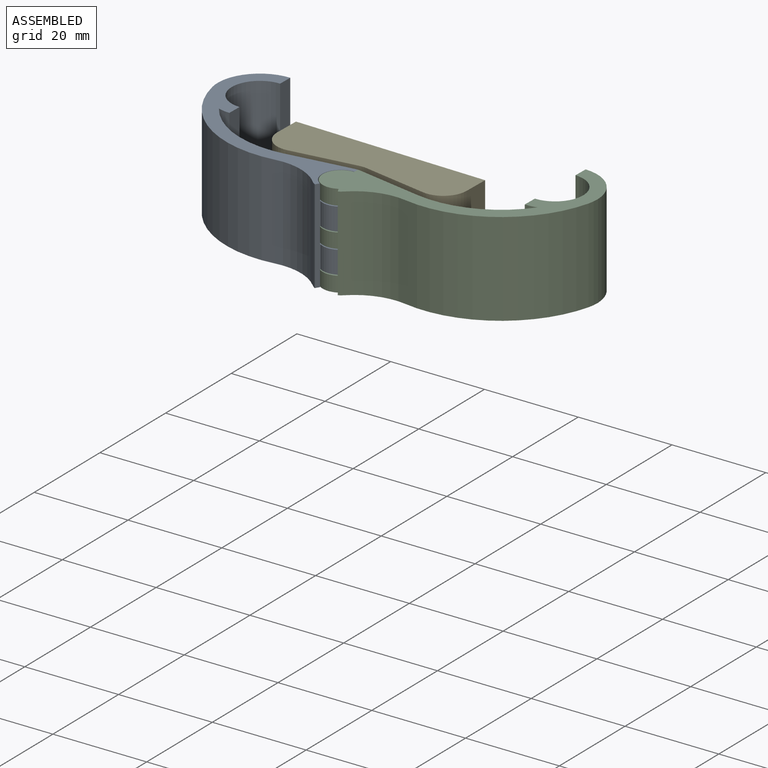
[diagram: assembled view]
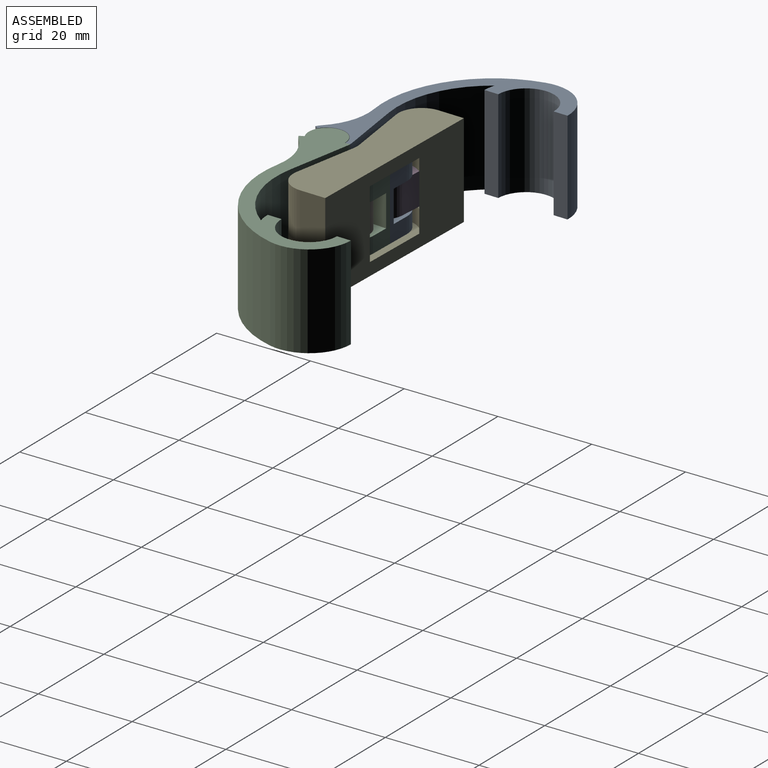
[diagram: assembled view, second angle]
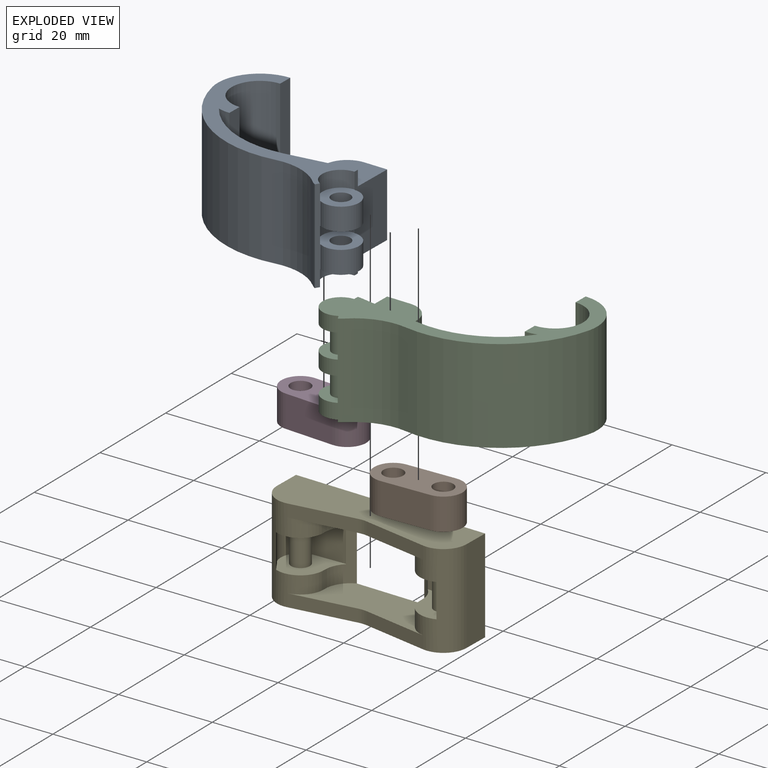
[diagram: exploded view]
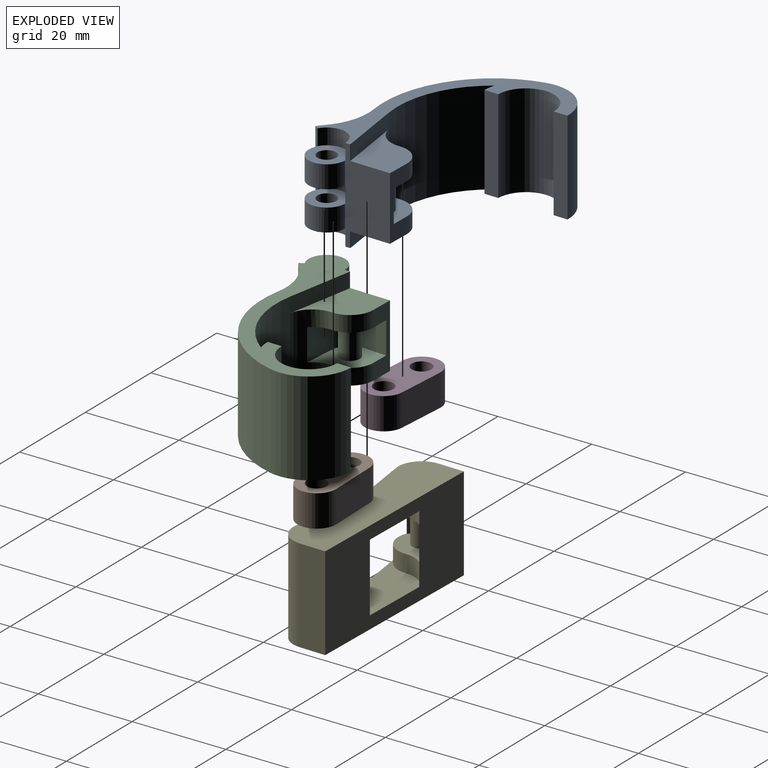
[diagram: exploded view, second angle]
ASSEMBLY  parts=5 mates=5
PART A: 40 faces, bbox 44.9x33x20 mm
  f0: cylinder r=5mm len=5.24mm, axis (0,0,-1), area 27.5mm2, adj f20,f22,f23,f28
  f1: plane 20x9.76mm, normal (1,0,0), area 138.7mm2, adj f2,f3,f6,f7,f8,f9,f20,f23
  f2: cylinder r=3.9mm len=7.8mm, axis (0,0,1), area 68.6mm2, adj f1,f4,f30,f33
  f3: cylinder r=3.9mm len=7.8mm, axis (0,0,1), area 68.6mm2, adj f1,f4,f31,f35
  f4: plane 20x0.95mm, normal (0.87,-0.5,0), area 21mm2, adj f2,f3,f5,f7,f8,f30,f31,f32
  f5: cylinder r=5mm len=20mm, axis (0,0,-1), area 24.5mm2, adj f4,f7,f8,f16
  f6: cylinder r=5mm len=3.2mm, axis (0,0,-1), area 2.5mm2, adj f1,f7,f17,f23
  f7: plane 41x32.99mm, normal (0,0,1), area 207.7mm2, adj f1,f4,f5,f6,f11,f12,f13,f14
  f8: plane 41x32.99mm, normal (0,0,-1), area 207.7mm2, adj f1,f4,f5,f9,f10,f11,f12,f13
  f9: cylinder r=5mm len=3.2mm, axis (0,0,-1), area 2.5mm2, adj f1,f8,f10,f24
  f10: plane 13.83x3.2mm, normal (-0.16,0.99,0), area 44.8mm2, adj f8,f9,f18,f24
  f11: plane 20x3mm, normal (1,0,0), area 60mm2, adj f7,f8,f12,f19
  f12: cylinder r=6mm len=20mm, axis (0,0,-1), area 377mm2, adj f7,f8,f11,f13
  f13: plane 20x3mm, normal (1,0,0), area 60mm2, adj f7,f8,f12,f14
  f14: cylinder r=9mm len=20mm, axis (0,0,-1), area 324.5mm2, adj f7,f8,f13,f15
  f15: cylinder r=23.53mm len=26.61mm, axis (0,0,-1), area 704.5mm2, adj f7,f8,f14,f16
  f16: cylinder r=12.52mm len=20mm, axis (0,0,-1), area 232mm2, adj f5,f7,f8,f15
  f17: plane 13.83x3.2mm, normal (-0.16,0.99,0), area 44.8mm2, adj f6,f7,f18,f23
  f18: cylinder r=20.53mm len=20mm, axis (0,0,-1), area 454.2mm2, adj f7,f8,f10,f17,f19,f22
  f19: cylinder r=9mm len=20mm, axis (0,0,-1), area 51.3mm2, adj f7,f8,f11,f18
  f20: plane 13.6x5mm, normal (0,1,0), area 41.7mm2, adj f0,f1,f21,f23,f24,f28,f29,f39
  f21: cylinder r=5mm len=5.24mm, axis (0,0,-1), area 27.5mm2, adj f20,f22,f24,f29
  f22: cylinder r=5.5mm len=13.6mm, axis (0,0,-1), area 77.8mm2, adj f0,f18,f21,f23,f24,f25,f28,f29
  f23: plane 14.62x10.93mm, normal (0,0,1), area 93mm2, adj f0,f1,f6,f17,f20,f22
  f24: plane 14.62x10.93mm, normal (0,0,-1), area 93mm2, adj f1,f9,f10,f20,f21,f22
  f25: plane 6.83x6.8mm, normal (-0.05,1,0), area 46.5mm2, adj f22,f26,f28,f29
  f26: cylinder r=4.1mm len=6.8mm, axis (0,0,-1), area 43.8mm2, adj f25,f28,f29,f39
  f27: cylinder r=2.1mm len=6.8mm, axis (0,0,-1), area 89.7mm2, adj f28,f29
  f28: plane 10.73x9.42mm, normal (0,0,-1), area 61.9mm2, adj f0,f20,f22,f25,f26,f27,f39
  f29: plane 10.73x9.42mm, normal (0,0,1), area 61.9mm2, adj f20,f21,f22,f25,f26,f27,f39
  f30: plane 7.9x7.9mm, normal (0,0,-1), area 36.3mm2, adj f1,f2,f4,f32,f38
  f31: plane 7.9x7.9mm, normal (0,0,1), area 36.3mm2, adj f1,f3,f4,f32,f37
  f32: cylinder r=4mm len=7.46mm, axis (0,0,-1), area 37mm2, adj f1,f4,f30,f31
  f33: plane 7.9x7.9mm, normal (0,0,1), area 36.3mm2, adj f1,f2,f4,f34,f38
  f34: cylinder r=4mm len=7.46mm, axis (0,0,-1), area 36mm2, adj f1,f4,f7,f33
  f35: plane 7.9x7.9mm, normal (0,0,-1), area 36.3mm2, adj f1,f3,f4,f36,f37
  f36: cylinder r=4mm len=7.46mm, axis (0,0,-1), area 36mm2, adj f1,f4,f8,f35
  f37: cylinder r=2mm len=4.8mm, axis (0,0,-1), area 60.3mm2, adj f31,f35
  f38: cylinder r=2mm len=4.8mm, axis (0,0,-1), area 60.3mm2, adj f30,f33
  f39: plane 6.8x4.8mm, normal (-1,-0.05,0), area 32.7mm2, adj f20,f26,f28,f29
PART B: 8 faces, bbox 18.7x8.7x6.8 mm
  f0: cylinder r=4.1mm len=8.2mm, axis (0,0,-1), area 87.6mm2, adj f1,f3,f6,f7
  f1: plane 10.49x6.8mm, normal (0.05,1,0), area 71.4mm2, adj f0,f2,f6,f7
  f2: cylinder r=4.1mm len=8.2mm, axis (0,0,-1), area 87.6mm2, adj f1,f3,f6,f7
  f3: plane 10.49x6.8mm, normal (-0.05,-1,0), area 71.4mm2, adj f0,f2,f6,f7
  f4: cylinder r=2.1mm len=6.8mm, axis (0,0,-1), area 89.7mm2, adj f6,f7
  f5: cylinder r=2.1mm len=6.8mm, axis (0,0,-1), area 89.7mm2, adj f6,f7
  f6: plane 18.69x8.7mm, normal (0,0,1), area 111.2mm2, adj f0,f1,f2,f3,f4,f5
  f7: plane 18.69x8.7mm, normal (0,0,-1), area 111.2mm2, adj f0,f1,f2,f3,f4,f5
PART C: 40 faces, bbox 44.9x33x20 mm
  f0: cylinder r=5mm len=5.24mm, axis (0,0,-1), area 27.5mm2, adj f1,f22,f24,f26
  f1: plane 13.6x5mm, normal (0,1,0), area 41.7mm2, adj f0,f2,f21,f23,f24,f25,f26,f39
  f2: plane 20x9.76mm, normal (-1,0,0), area 138.7mm2, adj f1,f3,f4,f6,f7,f19,f20,f23
  f3: cylinder r=3.9mm len=7.8mm, axis (0,0,-1), area 44.8mm2, adj f2,f5,f33,f37
  f4: cylinder r=3.9mm len=7.8mm, axis (0,0,-1), area 46.2mm2, adj f2,f5,f20,f31
  f5: plane 20x0.95mm, normal (-0.87,-0.5,0), area 21mm2, adj f3,f4,f9,f19,f20,f30,f31,f32
  f6: cylinder r=5mm len=3.2mm, axis (0,0,-1), area 2.5mm2, adj f2,f14,f19,f23
  f7: cylinder r=5mm len=3.2mm, axis (0,0,-1), area 2.5mm2, adj f2,f8,f20,f24
  f8: plane 13.83x3.2mm, normal (0.16,0.99,0), area 44.8mm2, adj f7,f13,f20,f24
  f9: cylinder r=5mm len=20mm, axis (0,0,-1), area 24.5mm2, adj f5,f15,f19,f20
  f10: cylinder r=6mm len=20mm, axis (0,0,-1), area 377mm2, adj f11,f18,f19,f20
  f11: plane 20x3mm, normal (-1,0,0), area 60mm2, adj f10,f12,f19,f20
  f12: cylinder r=9mm len=20mm, axis (0,0,-1), area 51.3mm2, adj f11,f13,f19,f20
  f13: cylinder r=20.53mm len=20mm, axis (0,0,-1), area 454.2mm2, adj f8,f12,f14,f19,f20,f22
  f14: plane 13.83x3.2mm, normal (0.16,0.99,0), area 44.8mm2, adj f6,f13,f19,f23
  f15: cylinder r=12.52mm len=20mm, axis (0,0,-1), area 232mm2, adj f9,f16,f19,f20
  f16: cylinder r=23.53mm len=26.61mm, axis (0,0,-1), area 704.5mm2, adj f15,f17,f19,f20
  f17: cylinder r=9mm len=20mm, axis (0,0,-1), area 324.5mm2, adj f16,f18,f19,f20
  f18: plane 20x3mm, normal (-1,0,0), area 60mm2, adj f10,f17,f19,f20
  f19: plane 44.9x32.99mm, normal (0,0,1), area 256.5mm2, adj f2,f5,f6,f9,f10,f11,f12,f13
  f20: plane 44.9x32.99mm, normal (0,0,-1), area 256.5mm2, adj f2,f4,f5,f7,f8,f9,f10,f11
  f21: cylinder r=5mm len=5.24mm, axis (0,0,-1), area 27.5mm2, adj f1,f22,f23,f25
  f22: cylinder r=5.5mm len=13.6mm, axis (0,0,-1), area 77.8mm2, adj f0,f13,f21,f23,f24,f25,f26,f28
  f23: plane 14.62x10.93mm, normal (0,0,1), area 93mm2, adj f1,f2,f6,f14,f21,f22
  f24: plane 14.62x10.93mm, normal (0,0,-1), area 93mm2, adj f0,f1,f2,f7,f8,f22
  f25: plane 10.73x9.42mm, normal (0,0,-1), area 61.9mm2, adj f1,f21,f22,f27,f28,f29,f39
  f26: plane 10.73x9.42mm, normal (0,0,1), area 61.9mm2, adj f0,f1,f22,f27,f28,f29,f39
  f27: cylinder r=4.1mm len=6.8mm, axis (0,0,-1), area 43.8mm2, adj f25,f26,f28,f39
  f28: plane 6.83x6.8mm, normal (0.05,1,0), area 46.5mm2, adj f22,f25,f26,f27
  f29: cylinder r=2.1mm len=6.8mm, axis (0,0,-1), area 89.7mm2, adj f25,f26
  f30: cylinder r=3.9mm len=7.8mm, axis (0,0,-1), area 46.2mm2, adj f2,f5,f19,f36
  f31: plane 7.9x7.9mm, normal (0,0,1), area 37.5mm2, adj f2,f4,f5,f32,f34
  f32: cylinder r=4mm len=7.46mm, axis (0,0,-1), area 54.5mm2, adj f2,f5,f31,f33
  f33: plane 7.9x7.9mm, normal (0,0,-1), area 37.5mm2, adj f2,f3,f5,f32,f34
  f34: cylinder r=1.9mm len=5.2mm, axis (0,0,-1), area 62.1mm2, adj f31,f33
  f35: cylinder r=4mm len=7.46mm, axis (0,0,-1), area 54.5mm2, adj f2,f5,f36,f37
  f36: plane 7.9x7.9mm, normal (0,0,-1), area 37.5mm2, adj f2,f5,f30,f35,f38
  f37: plane 7.9x7.9mm, normal (0,0,1), area 37.5mm2, adj f2,f3,f5,f35,f38
  f38: cylinder r=1.9mm len=5.2mm, axis (0,0,-1), area 62.1mm2, adj f36,f37
  f39: plane 6.8x4.8mm, normal (1,-0.05,0), area 32.7mm2, adj f1,f25,f26,f27
PART D: 8 faces, bbox 18.7x8.7x6.8 mm
  f0: cylinder r=4.1mm len=8.2mm, axis (0,0,-1), area 87.6mm2, adj f1,f4,f6,f7
  f1: plane 10.49x6.8mm, normal (0.05,-1,0), area 71.4mm2, adj f0,f2,f6,f7
  f2: cylinder r=4.1mm len=8.2mm, axis (0,0,-1), area 87.6mm2, adj f1,f4,f6,f7
  f3: cylinder r=2.1mm len=6.8mm, axis (0,0,-1), area 89.7mm2, adj f6,f7
  f4: plane 10.49x6.8mm, normal (-0.05,1,0), area 71.4mm2, adj f0,f2,f6,f7
  f5: cylinder r=2.1mm len=6.8mm, axis (0,0,-1), area 89.7mm2, adj f6,f7
  f6: plane 18.69x8.7mm, normal (0,0,1), area 111.2mm2, adj f0,f1,f2,f3,f4,f5
  f7: plane 18.69x8.7mm, normal (0,0,-1), area 111.2mm2, adj f0,f1,f2,f3,f4,f5
PART E: 33 faces, bbox 41x10.5x20 mm
  f0: cylinder r=5mm len=20mm, axis (0,0,1), area 207.2mm2, adj f1,f5,f10,f11,f13,f14,f15,f16
  f1: cylinder r=5.5mm len=14.6mm, axis (0,0,-1), area 62.1mm2, adj f0,f6,f15,f16,f20,f29,f30
  f2: cylinder r=5.5mm len=14.6mm, axis (0,0,-1), area 62.1mm2, adj f6,f7,f15,f16,f24,f27,f28
  f3: plane 13.83x2.7mm, normal (0.16,-0.99,0), area 37.8mm2, adj f7,f9,f13,f16
  f4: cylinder r=5.5mm len=2.7mm, axis (0,0,1), area 4.7mm2, adj f8,f10,f14,f15
  f5: plane 13.83x2.7mm, normal (-0.16,-0.99,0), area 37.8mm2, adj f0,f9,f13,f16
  f6: plane 40.98x20mm, normal (0,1,0), area 606.6mm2, adj f1,f2,f11,f12,f13,f14,f15,f16
  f7: cylinder r=5mm len=20mm, axis (0,0,1), area 207.2mm2, adj f2,f3,f8,f12,f13,f14,f15,f16
  f8: plane 13.83x2.7mm, normal (0.16,-0.99,0), area 37.8mm2, adj f4,f7,f14,f15
  f9: cylinder r=5.5mm len=2.7mm, axis (0,0,1), area 4.7mm2, adj f3,f5,f13,f16
  f10: plane 13.83x2.7mm, normal (-0.16,-0.99,0), area 37.8mm2, adj f0,f4,f14,f15
  f11: plane 20x5.5mm, normal (1,0,0), area 110mm2, adj f0,f6,f13,f14
  f12: plane 20x5.5mm, normal (-1,0,0), area 110mm2, adj f6,f7,f13,f14
  f13: plane 40.98x10.5mm, normal (0,0,-1), area 383.2mm2, adj f0,f3,f5,f6,f7,f9,f11,f12
  f14: plane 40.98x10.5mm, normal (0,0,1), area 383.2mm2, adj f0,f4,f6,f7,f8,f10,f11,f12
  f15: plane 29.4x10.44mm, normal (0,0,-1), area 185.8mm2, adj f0,f1,f2,f4,f6,f7,f8,f10
  f16: plane 29.4x10.44mm, normal (0,0,1), area 185.8mm2, adj f0,f1,f2,f3,f5,f6,f7,f9
  f17: plane 7.2x2.41mm, normal (0.84,0.54,0), area 20.6mm2, adj f7,f23,f27,f28
  f18: plane 7.2x2.41mm, normal (-0.84,0.54,0), area 20.6mm2, adj f0,f19,f29,f30
  f19: plane 7.2x0.08mm, normal (0.54,0.84,0), area 0.7mm2, adj f18,f22,f29,f30
  f20: plane 7.2x0.1mm, normal (1,-0.05,0), area 0.7mm2, adj f1,f21,f29,f30
  f21: plane 7.2x6.83mm, normal (-0.05,-1,0), area 49.2mm2, adj f20,f22,f29,f30
  f22: cylinder r=4.2mm len=7.2mm, axis (0,0,-1), area 63.3mm2, adj f19,f21,f29,f30
  f23: plane 7.2x0.08mm, normal (-0.54,0.84,0), area 0.7mm2, adj f17,f26,f27,f28
  f24: plane 7.2x0.1mm, normal (-1,-0.05,0), area 0.7mm2, adj f2,f25,f27,f28
  f25: plane 7.2x6.83mm, normal (0.05,-1,0), area 49.2mm2, adj f24,f26,f27,f28
  f26: cylinder r=4.2mm len=7.2mm, axis (0,0,-1), area 63.3mm2, adj f23,f25,f27,f28
  f27: plane 10.83x9.52mm, normal (0,0,-1), area 60.4mm2, adj f2,f7,f17,f23,f24,f25,f26,f31
  f28: plane 10.83x9.52mm, normal (0,0,1), area 60.4mm2, adj f2,f7,f17,f23,f24,f25,f26,f31
  f29: plane 10.83x9.52mm, normal (0,0,-1), area 60.4mm2, adj f0,f1,f18,f19,f20,f21,f22,f32
  f30: plane 10.83x9.52mm, normal (0,0,1), area 60.4mm2, adj f0,f1,f18,f19,f20,f21,f22,f32
  f31: cylinder r=2mm len=7.2mm, axis (0,0,-1), area 90.5mm2, adj f27,f28
  f32: cylinder r=2mm len=7.2mm, axis (0,0,-1), area 90.5mm2, adj f29,f30
PLACE A rot(axis=(0,0,-1),1.3deg) t=(-0.18,-0.57,0)mm
PLACE B rot(axis=(0,0,1),4.2deg) t=(0.66,-1.03,0)mm
PLACE C rot(axis=(0,0,-1),1.3deg) t=(-0.18,-0.57,0)mm
PLACE D rot(axis=(0,0,-1),6.7deg) t=(-1.04,-0.99,0)mm
PLACE E rot(axis=(0,0,-1),1.3deg) t=(-0.16,0.43,0)mm fixed
MATE revolute E.f7 <-> D.f0  axis (0,0,-1) through (-15.46,8.93,0)mm
MATE revolute C.f3 <-> A.f37  axis (0,0,-1) through (-0.18,-0.57,4.17)mm
MATE revolute A.f0 <-> D.f2  axis (0,0,-1) through (-4.99,8.2,0)mm
MATE revolute E.f0 <-> B.f0  axis (0,0,1) through (15.51,8.24,0)mm
MATE revolute C.f0 <-> B.f2  axis (0,0,-1) through (5.01,7.97,0)mm
